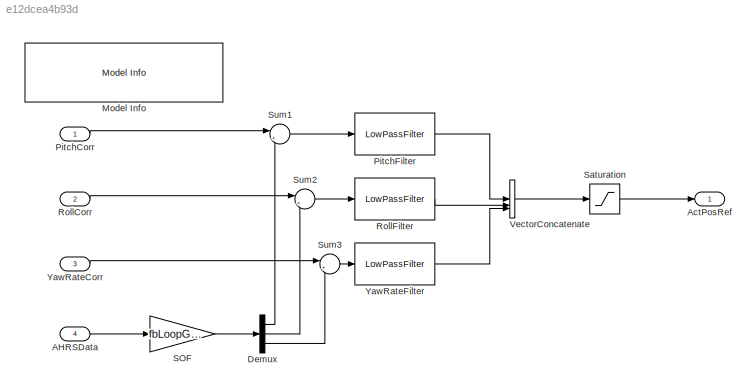
MODEL slx_e12dcea4b93d
KIND model
CONFIG AbsTol = auto
CONFIG EnableMultiTasking = on
CONFIG FixedStep = auto
CONFIG MaxStep = auto
CONFIG MinStep = auto
CONFIG RelTol = 1e-3
CONFIG SampleTimeConstraint = Unconstrained
CONFIG SolverName = FixedStepDiscrete
CONFIG StartTime = 0.0
CONFIG StopTime = 10.0
BLOCK [Inport] AHRSData
  OutDataTypeStr = double
  OutMax = 180
  OutMin = -180
  Port = 4
  PortDimensions = 5
  SampleTime = 0.01
BLOCK [Outport] ActPosRef
  OutDataTypeStr = double
  VectorParamsAs1DForOutWhenUnconnected = off
BLOCK [Demux] Demux
  Outputs = 3
BLOCK [Reference] Model Info  REF=simulink/Model-Wide
Utilities/Model Info
  SourceBlock = simulink/Model-Wide\nUtilities/Model Info
  SourceType = CMBlock
BLOCK [Inport] PitchCorr
  OutDataTypeStr = double
  OutMax = 30
  OutMin = -30
  PortDimensions = 1
  SampleTime = 0.01
BLOCK [Reference] PitchFilter  REF=FilterLib/LowPassFilter
  SourceBlock = FilterLib/LowPassFilter
  SourceType = Low Pass Filter
BLOCK [Inport] RollCorr
  OutDataTypeStr = double
  OutMax = 30
  OutMin = -30
  Port = 2
  PortDimensions = 1
  SampleTime = 0.01
BLOCK [Reference] RollFilter  REF=FilterLib/LowPassFilter
  SourceBlock = FilterLib/LowPassFilter
  SourceType = Low Pass Filter
BLOCK [Gain] SOF
  Gain = fbLoopGain
  Multiplication = Matrix(K*u) (u vector)
BLOCK [Saturate] Saturation
  LowerLimit = -0.1
  UpperLimit = 0.1
BLOCK [Sum] Sum1
  Inputs = |+-
BLOCK [Sum] Sum2
  Inputs = |+-
BLOCK [Sum] Sum3
  Inputs = |+-
BLOCK [Concatenate] VectorConcatenate
  NumInputs = 3
BLOCK [Inport] YawRateCorr
  OutDataTypeStr = double
  OutMax = 15
  OutMin = -15
  Port = 3
  PortDimensions = 1
  SampleTime = 0.01
BLOCK [Reference] YawRateFilter  REF=FilterLib/LowPassFilter
  SourceBlock = FilterLib/LowPassFilter
  SourceType = Low Pass Filter
LINE AHRSData:1 -> SOF:1
LINE Demux:1 -> Sum1:2
LINE Demux:2 -> Sum2:2
LINE Demux:3 -> Sum3:2
LINE PitchCorr:1 -> Sum1:1
LINE PitchFilter:1 -> VectorConcatenate:1
LINE RollCorr:1 -> Sum2:1
LINE RollFilter:1 -> VectorConcatenate:2
LINE SOF:1 -> Demux:1
LINE Saturation:1 -> ActPosRef:1
LINE Sum1:1 -> PitchFilter:1
LINE Sum2:1 -> RollFilter:1
LINE Sum3:1 -> YawRateFilter:1
LINE VectorConcatenate:1 -> Saturation:1
LINE YawRateCorr:1 -> Sum3:1
LINE YawRateFilter:1 -> VectorConcatenate:3
